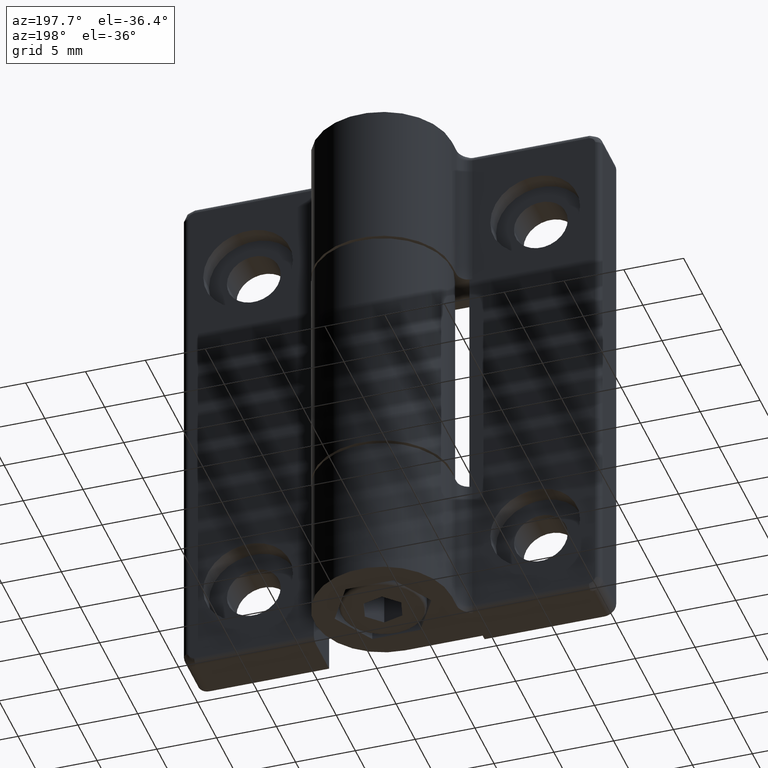
[diagram: clean part render]
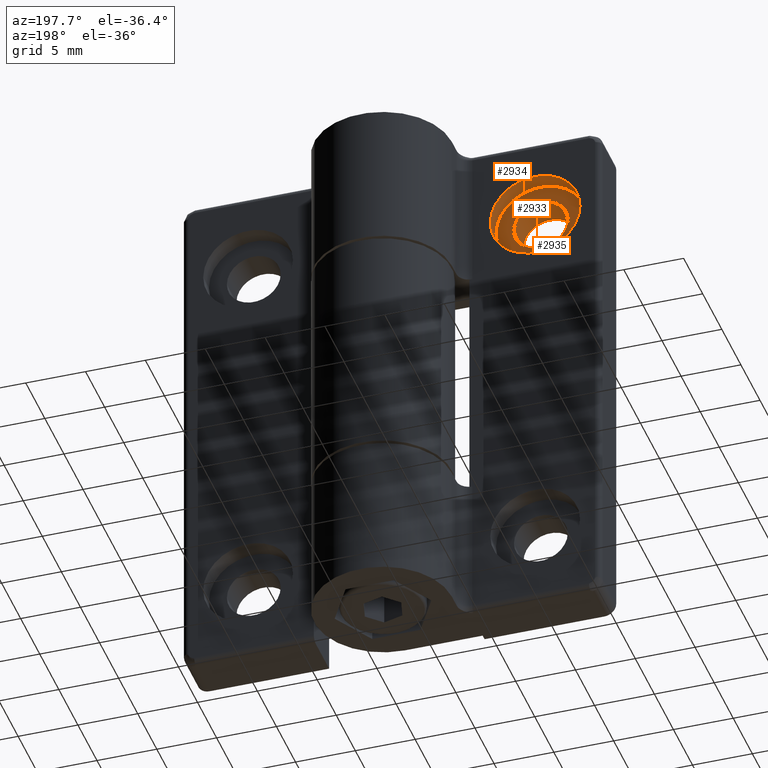
[diagram: same view with one multi-face feature highlighted, each face labeled with its STEP entity id]
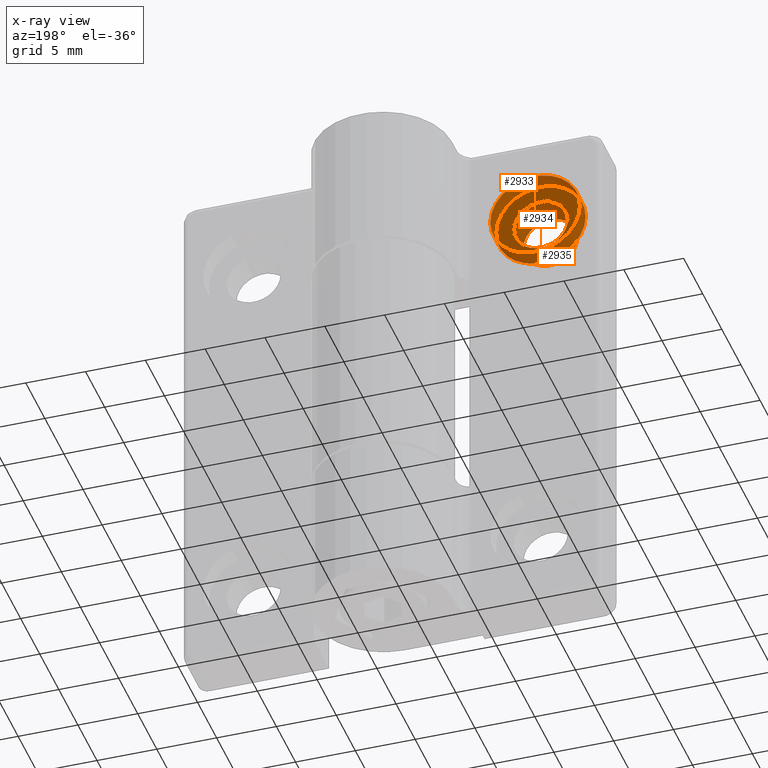
[diagram: x-ray of the same camera — body ghosted, the whole feature saturated]
A machine part, auxiliary view. The highlighted faces form ONE feature: a stepped (counterbored) hole: 2 coaxial cylindrical walls of radii 2.25 -> 3.75 mm joined by 1 annular planar shoulder face(s). The faces share edges in the B-rep.
The next image is the same camera in x-ray: the body ghosted and the whole hole feature saturated, so the bore chain is visible through the body.
Their STEP definitions:
[1] entity #2934 (Cylinder):
#318=FACE_BOUND('',#575,.T.);
#446=FACE_OUTER_BOUND('',#574,.T.);
#574=EDGE_LOOP('',(#2098));
#575=EDGE_LOOP('',(#2099));
#995=CIRCLE('',#3029,3.75);
#1019=CIRCLE('',#3082,3.75);
#1077=VERTEX_POINT('',#3769);
#1131=VERTEX_POINT('',#3963);
#1469=EDGE_CURVE('',#1077,#1077,#995,.T.);
#1548=EDGE_CURVE('',#1131,#1131,#1019,.T.);
#2098=ORIENTED_EDGE('',*,*,#1548,.T.);
#2099=ORIENTED_EDGE('',*,*,#1469,.F.);
#2880=CYLINDRICAL_SURFACE('',#3084,3.75);
#2934=ADVANCED_FACE('',(#446,#318),#2880,.F.);
#3029=AXIS2_PLACEMENT_3D('',#3770,#3237,#3238);
#3082=AXIS2_PLACEMENT_3D('',#3964,#3396,#3397);
#3084=AXIS2_PLACEMENT_3D('',#3967,#3400,#3401);
#3237=DIRECTION('center_axis',(0.,0.,-1.));
#3238=DIRECTION('ref_axis',(1.,0.,0.));
#3396=DIRECTION('center_axis',(0.,0.,-1.));
#3397=DIRECTION('ref_axis',(1.,0.,0.));
#3400=DIRECTION('center_axis',(0.,0.,-1.));
#3401=DIRECTION('ref_axis',(1.,0.,0.));
#3769=CARTESIAN_POINT('',(1.75,-15.5,4.));
#3770=CARTESIAN_POINT('Origin',(5.5,-15.5,4.));
#3963=CARTESIAN_POINT('',(1.75,-15.5,2.5));
#3964=CARTESIAN_POINT('Origin',(5.5,-15.5,2.5));
#3967=CARTESIAN_POINT('Origin',(5.5,-15.5,3.25));
[2] entity #2935 (Cylinder):
#319=FACE_BOUND('',#577,.T.);
#447=FACE_OUTER_BOUND('',#576,.T.);
#576=EDGE_LOOP('',(#2100));
#577=EDGE_LOOP('',(#2101));
#1013=CIRCLE('',#3063,2.25);
#1020=CIRCLE('',#3083,2.25);
#1116=VERTEX_POINT('',#3902);
#1132=VERTEX_POINT('',#3965);
#1524=EDGE_CURVE('',#1116,#1116,#1013,.T.);
#1549=EDGE_CURVE('',#1132,#1132,#1020,.T.);
#2100=ORIENTED_EDGE('',*,*,#1524,.F.);
#2101=ORIENTED_EDGE('',*,*,#1549,.F.);
#2881=CYLINDRICAL_SURFACE('',#3085,2.25);
#2935=ADVANCED_FACE('',(#447,#319),#2881,.F.);
#3063=AXIS2_PLACEMENT_3D('',#3903,#3340,#3341);
#3083=AXIS2_PLACEMENT_3D('',#3966,#3398,#3399);
#3085=AXIS2_PLACEMENT_3D('',#3968,#3402,#3403);
#3340=DIRECTION('center_axis',(-5.60270529276287E-33,0.,1.));
#3341=DIRECTION('ref_axis',(1.,0.,5.60270529276287E-33));
#3398=DIRECTION('center_axis',(0.,0.,-1.));
#3399=DIRECTION('ref_axis',(1.,0.,0.));
#3402=DIRECTION('center_axis',(0.,0.,-1.));
#3403=DIRECTION('ref_axis',(1.,0.,0.));
#3902=CARTESIAN_POINT('',(3.25,-15.5,0.));
#3903=CARTESIAN_POINT('Origin',(5.5,-15.5,0.));
#3965=CARTESIAN_POINT('',(3.25,-15.5,2.5));
#3966=CARTESIAN_POINT('Origin',(5.5,-15.5,2.5));
#3968=CARTESIAN_POINT('Origin',(5.5,-15.5,-3.));
[3] entity #2933 (Plane):
#317=FACE_BOUND('',#573,.T.);
#361=PLANE('',#3081);
#445=FACE_OUTER_BOUND('',#572,.T.);
#572=EDGE_LOOP('',(#2096));
#573=EDGE_LOOP('',(#2097));
#1019=CIRCLE('',#3082,3.75);
#1020=CIRCLE('',#3083,2.25);
#1131=VERTEX_POINT('',#3963);
#1132=VERTEX_POINT('',#3965);
#1548=EDGE_CURVE('',#1131,#1131,#1019,.T.);
#1549=EDGE_CURVE('',#1132,#1132,#1020,.T.);
#2096=ORIENTED_EDGE('',*,*,#1548,.F.);
#2097=ORIENTED_EDGE('',*,*,#1549,.T.);
#2933=ADVANCED_FACE('',(#445,#317),#361,.F.);
#3081=AXIS2_PLACEMENT_3D('',#3962,#3394,#3395);
#3082=AXIS2_PLACEMENT_3D('',#3964,#3396,#3397);
#3083=AXIS2_PLACEMENT_3D('',#3966,#3398,#3399);
#3394=DIRECTION('center_axis',(0.,0.,-1.));
#3395=DIRECTION('ref_axis',(1.,0.,0.));
#3396=DIRECTION('center_axis',(0.,0.,-1.));
#3397=DIRECTION('ref_axis',(1.,0.,0.));
#3398=DIRECTION('center_axis',(0.,0.,-1.));
#3399=DIRECTION('ref_axis',(1.,0.,0.));
#3962=CARTESIAN_POINT('Origin',(5.5,-15.5,2.5));
#3963=CARTESIAN_POINT('',(1.75,-15.5,2.5));
#3964=CARTESIAN_POINT('Origin',(5.5,-15.5,2.5));
#3965=CARTESIAN_POINT('',(3.25,-15.5,2.5));
#3966=CARTESIAN_POINT('Origin',(5.5,-15.5,2.5));